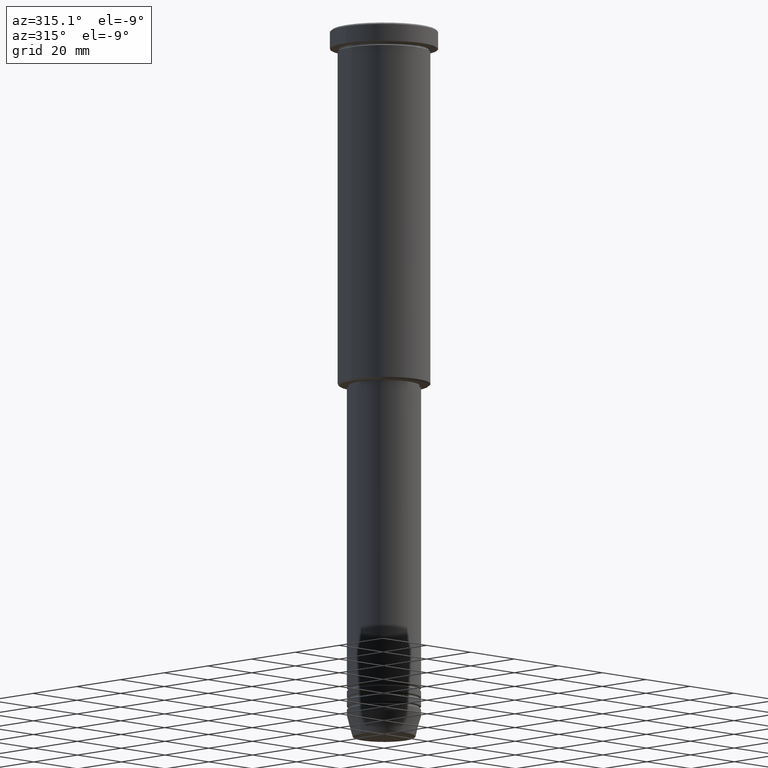
[diagram: clean part render]
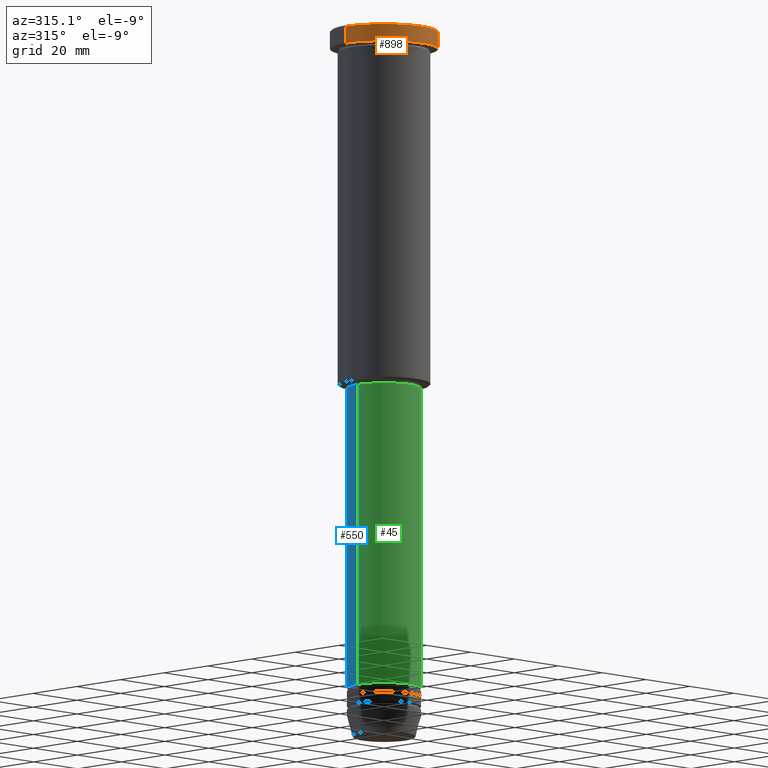
[diagram: same view with three faces highlighted in distinct colors, each labeled with its STEP entity id]
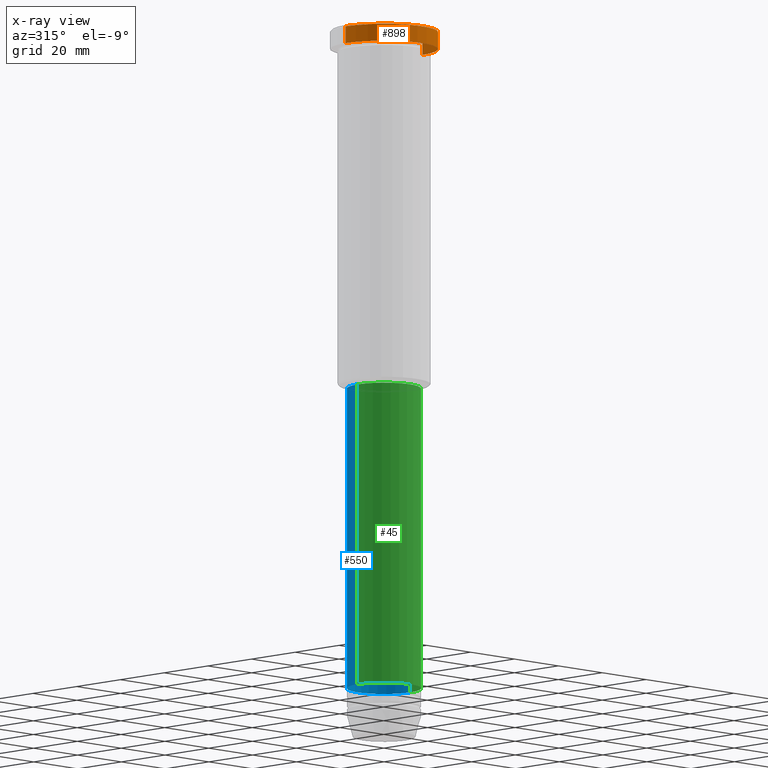
[diagram: x-ray of the same camera — body ghosted, the three highlighted faces saturated]
A machine part, auxiliary view with three faces highlighted in distinct colors.
The next image is the same camera in x-ray (body ghosted, the three faces saturated) — at least one of them is partly hidden behind the body in this view.
Their STEP definitions:

[orange] entity #898 — the highlighted cylindrical surface (partial cylindrical patch) has radius 17.5 mm, axis along (-0, -0, 1).
#31 = CARTESIAN_POINT ( 'NONE',  ( 17.50000000000000000, 0.000000000000000000, 0.000000000000000000 ) ) ;
#50 = DIRECTION ( 'NONE',  ( 1.000000000000000000, 0.000000000000000000, 0.000000000000000000 ) ) ;
#61 = CARTESIAN_POINT ( 'NONE',  ( 17.50000000000000000, 0.000000000000000000, -0.5000000000000559552 ) ) ;
#200 = AXIS2_PLACEMENT_3D ( 'NONE', #326, #1071, #50 ) ;
#211 = FACE_OUTER_BOUND ( 'NONE', #1088, .T. ) ;
#270 = ORIENTED_EDGE ( 'NONE', *, *, #589, .F. ) ;
#304 = CIRCLE ( 'NONE', #200, 17.50000000000000000 ) ;
#326 = CARTESIAN_POINT ( 'NONE',  ( 0.000000000000000000, 0.000000000000000000, -5.999999999999995559 ) ) ;
#347 = DIRECTION ( 'NONE',  ( 1.000000000000000000, 0.000000000000000000, 0.000000000000000000 ) ) ;
#359 = VECTOR ( 'NONE', #515, 1000.000000000000000 ) ;
#399 = VERTEX_POINT ( 'NONE', #61 ) ;
#403 = CIRCLE ( 'NONE', #444, 17.50000000000000000 ) ;
#420 = LINE ( 'NONE', #605, #359 ) ;
#427 = CARTESIAN_POINT ( 'NONE',  ( -17.50000000000000000, 2.143131898507868248E-15, -0.5000000000000559552 ) ) ;
#444 = AXIS2_PLACEMENT_3D ( 'NONE', #798, #807, #347 ) ;
#498 = VERTEX_POINT ( 'NONE', #838 ) ;
#503 = EDGE_CURVE ( 'NONE', #734, #399, #854, .T. ) ;
#507 = VERTEX_POINT ( 'NONE', #427 ) ;
#515 = DIRECTION ( 'NONE',  ( -0.000000000000000000, -0.000000000000000000, 1.000000000000000000 ) ) ;
#528 = AXIS2_PLACEMENT_3D ( 'NONE', #1107, #1077, #1083 ) ;
#589 = EDGE_CURVE ( 'NONE', #498, #507, #420, .T. ) ;
#605 = CARTESIAN_POINT ( 'NONE',  ( -17.50000000000000000, 2.143131898507868248E-15, 0.000000000000000000 ) ) ;
#677 = CYLINDRICAL_SURFACE ( 'NONE', #528, 17.50000000000000000 ) ;
#723 = ORIENTED_EDGE ( 'NONE', *, *, #503, .T. ) ;
#734 = VERTEX_POINT ( 'NONE', #873 ) ;
#798 = CARTESIAN_POINT ( 'NONE',  ( 0.000000000000000000, 0.000000000000000000, -0.5000000000000559552 ) ) ;
#807 = DIRECTION ( 'NONE',  ( 0.000000000000000000, 0.000000000000000000, -1.000000000000000000 ) ) ;
#836 = EDGE_CURVE ( 'NONE', #498, #734, #304, .T. ) ;
#838 = CARTESIAN_POINT ( 'NONE',  ( -17.50000000000000000, 2.143131898507868248E-15, -5.999999999999995559 ) ) ;
#843 = DIRECTION ( 'NONE',  ( -0.000000000000000000, -0.000000000000000000, 1.000000000000000000 ) ) ;
#854 = LINE ( 'NONE', #31, #956 ) ;
#873 = CARTESIAN_POINT ( 'NONE',  ( 17.50000000000000000, 0.000000000000000000, -5.999999999999995559 ) ) ;
#881 = ORIENTED_EDGE ( 'NONE', *, *, #930, .T. ) ;
#898 = ADVANCED_FACE ( 'NONE', ( #211 ), #677, .T. ) ;
#930 = EDGE_CURVE ( 'NONE', #399, #507, #403, .T. ) ;
#956 = VECTOR ( 'NONE', #843, 1000.000000000000000 ) ;
#1071 = DIRECTION ( 'NONE',  ( -0.000000000000000000, -0.000000000000000000, 1.000000000000000000 ) ) ;
#1077 = DIRECTION ( 'NONE',  ( -0.000000000000000000, -0.000000000000000000, 1.000000000000000000 ) ) ;
#1083 = DIRECTION ( 'NONE',  ( 1.000000000000000000, 0.000000000000000000, 0.000000000000000000 ) ) ;
#1088 = EDGE_LOOP ( 'NONE', ( #270, #1150, #723, #881 ) ) ;
#1107 = CARTESIAN_POINT ( 'NONE',  ( 0.000000000000000000, 0.000000000000000000, 0.000000000000000000 ) ) ;
#1150 = ORIENTED_EDGE ( 'NONE', *, *, #836, .T. ) ;

[blue] entity #550 — the highlighted cylindrical surface (partial cylindrical patch) has radius 12 mm, axis along (-0, -0, 1).
#21 = DIRECTION ( 'NONE',  ( 1.000000000000000000, 0.000000000000000000, 0.000000000000000000 ) ) ;
#109 = ORIENTED_EDGE ( 'NONE', *, *, #116, .F. ) ;
#116 = EDGE_CURVE ( 'NONE', #437, #1085, #1065, .T. ) ;
#228 = EDGE_CURVE ( 'NONE', #907, #350, #342, .T. ) ;
#247 = CARTESIAN_POINT ( 'NONE',  ( -12.00000000000000000, 1.469576158976823947E-15, 0.000000000000000000 ) ) ;
#255 = CARTESIAN_POINT ( 'NONE',  ( 0.000000000000000000, 0.000000000000000000, 0.000000000000000000 ) ) ;
#262 = VECTOR ( 'NONE', #978, 1000.000000000000000 ) ;
#263 = CARTESIAN_POINT ( 'NONE',  ( 0.000000000000000000, 0.000000000000000000, -117.0000000000000000 ) ) ;
#342 = LINE ( 'NONE', #247, #262 ) ;
#350 = VERTEX_POINT ( 'NONE', #1038 ) ;
#437 = VERTEX_POINT ( 'NONE', #468 ) ;
#468 = CARTESIAN_POINT ( 'NONE',  ( 12.00000000000000000, 0.000000000000000000, -214.9999999999999716 ) ) ;
#485 = DIRECTION ( 'NONE',  ( -0.000000000000000000, -0.000000000000000000, 1.000000000000000000 ) ) ;
#550 = ADVANCED_FACE ( 'NONE', ( #1072 ), #1063, .T. ) ;
#570 = CARTESIAN_POINT ( 'NONE',  ( 0.000000000000000000, 0.000000000000000000, -214.9999999999999716 ) ) ;
#616 = DIRECTION ( 'NONE',  ( -0.000000000000000000, -0.000000000000000000, 1.000000000000000000 ) ) ;
#620 = EDGE_CURVE ( 'NONE', #1085, #350, #1116, .T. ) ;
#626 = DIRECTION ( 'NONE',  ( -0.000000000000000000, -0.000000000000000000, 1.000000000000000000 ) ) ;
#632 = CARTESIAN_POINT ( 'NONE',  ( 12.00000000000000000, 0.000000000000000000, -117.0000000000000000 ) ) ;
#640 = ORIENTED_EDGE ( 'NONE', *, *, #228, .T. ) ;
#699 = EDGE_CURVE ( 'NONE', #437, #907, #1058, .T. ) ;
#813 = AXIS2_PLACEMENT_3D ( 'NONE', #570, #485, #21 ) ;
#865 = DIRECTION ( 'NONE',  ( -0.000000000000000000, -0.000000000000000000, 1.000000000000000000 ) ) ;
#868 = VECTOR ( 'NONE', #865, 1000.000000000000000 ) ;
#906 = CARTESIAN_POINT ( 'NONE',  ( -12.00000000000000000, 1.469576158976823947E-15, -214.9999999999999716 ) ) ;
#907 = VERTEX_POINT ( 'NONE', #906 ) ;
#958 = CARTESIAN_POINT ( 'NONE',  ( 12.00000000000000000, 0.000000000000000000, 0.000000000000000000 ) ) ;
#971 = AXIS2_PLACEMENT_3D ( 'NONE', #255, #616, #989 ) ;
#978 = DIRECTION ( 'NONE',  ( -0.000000000000000000, -0.000000000000000000, 1.000000000000000000 ) ) ;
#989 = DIRECTION ( 'NONE',  ( 1.000000000000000000, 0.000000000000000000, 0.000000000000000000 ) ) ;
#994 = ORIENTED_EDGE ( 'NONE', *, *, #699, .T. ) ;
#997 = DIRECTION ( 'NONE',  ( 1.000000000000000000, 0.000000000000000000, 0.000000000000000000 ) ) ;
#1012 = EDGE_LOOP ( 'NONE', ( #994, #640, #1110, #109 ) ) ;
#1038 = CARTESIAN_POINT ( 'NONE',  ( -12.00000000000000000, 1.469576158976823947E-15, -117.0000000000000000 ) ) ;
#1058 = CIRCLE ( 'NONE', #813, 12.00000000000000000 ) ;
#1062 = AXIS2_PLACEMENT_3D ( 'NONE', #263, #626, #997 ) ;
#1063 = CYLINDRICAL_SURFACE ( 'NONE', #971, 12.00000000000000000 ) ;
#1065 = LINE ( 'NONE', #958, #868 ) ;
#1072 = FACE_OUTER_BOUND ( 'NONE', #1012, .T. ) ;
#1085 = VERTEX_POINT ( 'NONE', #632 ) ;
#1110 = ORIENTED_EDGE ( 'NONE', *, *, #620, .F. ) ;
#1116 = CIRCLE ( 'NONE', #1062, 12.00000000000000000 ) ;

[green] entity #45 — the highlighted cylindrical surface (partial cylindrical patch) has radius 12 mm, axis along (-0, -0, 1).
#1 = ORIENTED_EDGE ( 'NONE', *, *, #116, .T. ) ;
#3 = ORIENTED_EDGE ( 'NONE', *, *, #228, .F. ) ;
#8 = DIRECTION ( 'NONE',  ( -0.000000000000000000, -0.000000000000000000, 1.000000000000000000 ) ) ;
#45 = ADVANCED_FACE ( 'NONE', ( #300 ), #651, .T. ) ;
#63 = AXIS2_PLACEMENT_3D ( 'NONE', #557, #99, #474 ) ;
#99 = DIRECTION ( 'NONE',  ( -0.000000000000000000, -0.000000000000000000, 1.000000000000000000 ) ) ;
#111 = DIRECTION ( 'NONE',  ( -0.000000000000000000, -0.000000000000000000, 1.000000000000000000 ) ) ;
#116 = EDGE_CURVE ( 'NONE', #437, #1085, #1065, .T. ) ;
#125 = CARTESIAN_POINT ( 'NONE',  ( 0.000000000000000000, 0.000000000000000000, 0.000000000000000000 ) ) ;
#160 = ORIENTED_EDGE ( 'NONE', *, *, #778, .T. ) ;
#228 = EDGE_CURVE ( 'NONE', #907, #350, #342, .T. ) ;
#247 = CARTESIAN_POINT ( 'NONE',  ( -12.00000000000000000, 1.469576158976823947E-15, 0.000000000000000000 ) ) ;
#262 = VECTOR ( 'NONE', #978, 1000.000000000000000 ) ;
#300 = FACE_OUTER_BOUND ( 'NONE', #980, .T. ) ;
#302 = CIRCLE ( 'NONE', #63, 12.00000000000000000 ) ;
#307 = CIRCLE ( 'NONE', #691, 12.00000000000000000 ) ;
#342 = LINE ( 'NONE', #247, #262 ) ;
#350 = VERTEX_POINT ( 'NONE', #1038 ) ;
#376 = DIRECTION ( 'NONE',  ( 1.000000000000000000, 0.000000000000000000, 0.000000000000000000 ) ) ;
#389 = CARTESIAN_POINT ( 'NONE',  ( 0.000000000000000000, 0.000000000000000000, -117.0000000000000000 ) ) ;
#437 = VERTEX_POINT ( 'NONE', #468 ) ;
#468 = CARTESIAN_POINT ( 'NONE',  ( 12.00000000000000000, 0.000000000000000000, -214.9999999999999716 ) ) ;
#474 = DIRECTION ( 'NONE',  ( 1.000000000000000000, 0.000000000000000000, 0.000000000000000000 ) ) ;
#557 = CARTESIAN_POINT ( 'NONE',  ( 0.000000000000000000, 0.000000000000000000, -214.9999999999999716 ) ) ;
#623 = EDGE_CURVE ( 'NONE', #350, #1085, #307, .T. ) ;
#632 = CARTESIAN_POINT ( 'NONE',  ( 12.00000000000000000, 0.000000000000000000, -117.0000000000000000 ) ) ;
#651 = CYLINDRICAL_SURFACE ( 'NONE', #711, 12.00000000000000000 ) ;
#691 = AXIS2_PLACEMENT_3D ( 'NONE', #389, #111, #376 ) ;
#711 = AXIS2_PLACEMENT_3D ( 'NONE', #125, #8, #1019 ) ;
#778 = EDGE_CURVE ( 'NONE', #907, #437, #302, .T. ) ;
#865 = DIRECTION ( 'NONE',  ( -0.000000000000000000, -0.000000000000000000, 1.000000000000000000 ) ) ;
#868 = VECTOR ( 'NONE', #865, 1000.000000000000000 ) ;
#906 = CARTESIAN_POINT ( 'NONE',  ( -12.00000000000000000, 1.469576158976823947E-15, -214.9999999999999716 ) ) ;
#907 = VERTEX_POINT ( 'NONE', #906 ) ;
#958 = CARTESIAN_POINT ( 'NONE',  ( 12.00000000000000000, 0.000000000000000000, 0.000000000000000000 ) ) ;
#978 = DIRECTION ( 'NONE',  ( -0.000000000000000000, -0.000000000000000000, 1.000000000000000000 ) ) ;
#980 = EDGE_LOOP ( 'NONE', ( #3, #160, #1, #1155 ) ) ;
#1019 = DIRECTION ( 'NONE',  ( 1.000000000000000000, 0.000000000000000000, 0.000000000000000000 ) ) ;
#1038 = CARTESIAN_POINT ( 'NONE',  ( -12.00000000000000000, 1.469576158976823947E-15, -117.0000000000000000 ) ) ;
#1065 = LINE ( 'NONE', #958, #868 ) ;
#1085 = VERTEX_POINT ( 'NONE', #632 ) ;
#1155 = ORIENTED_EDGE ( 'NONE', *, *, #623, .F. ) ;